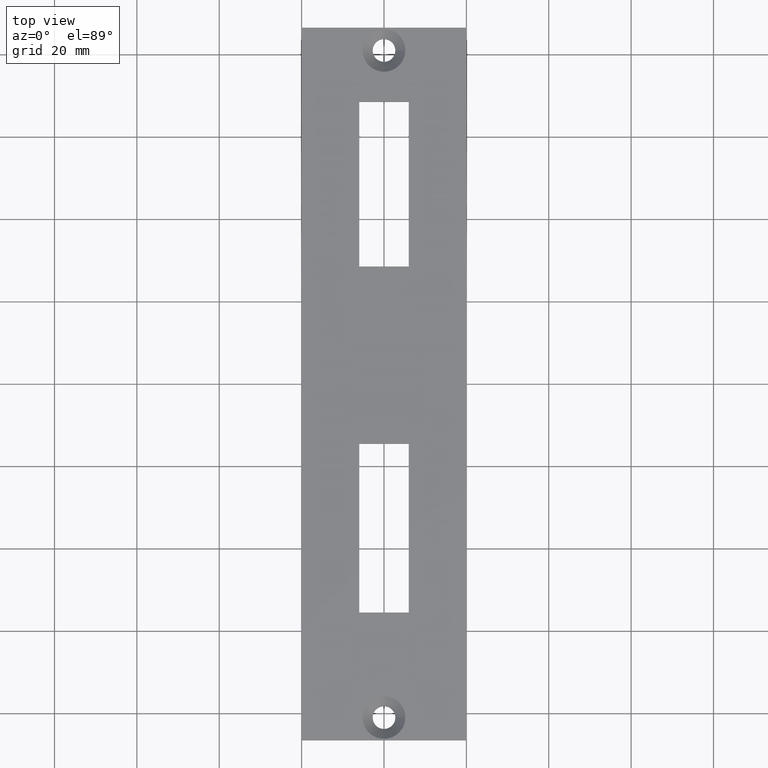
[diagram: clean part render]
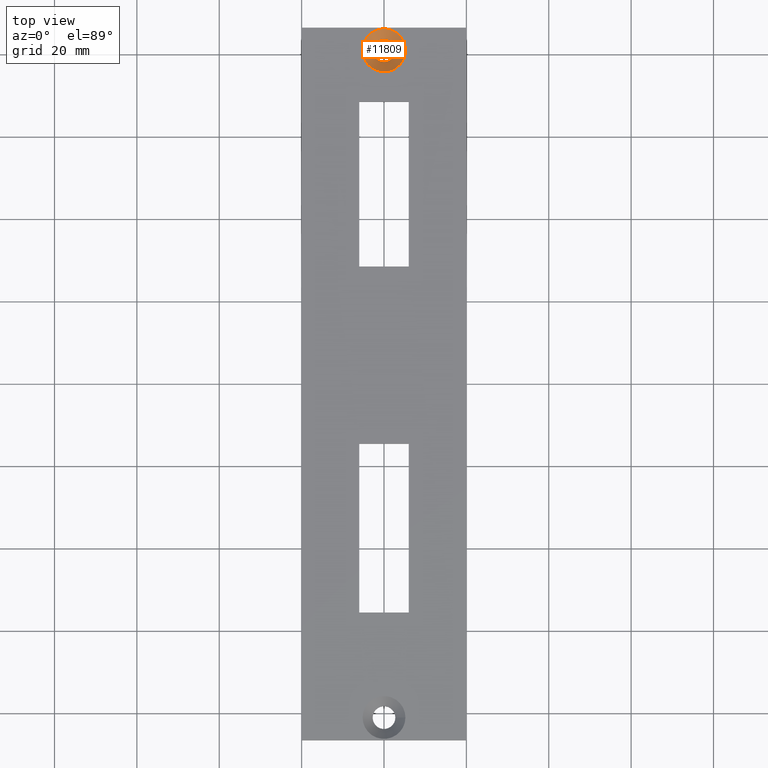
[diagram: same view with one face highlighted and labeled with its STEP entity id]
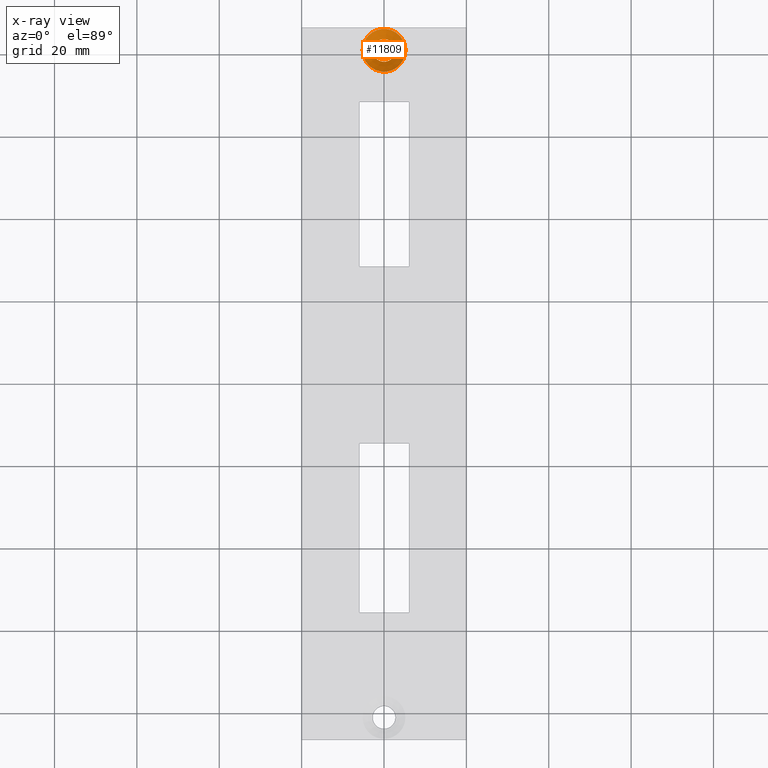
[diagram: x-ray of the same camera — body ghosted, the highlighted face saturated]
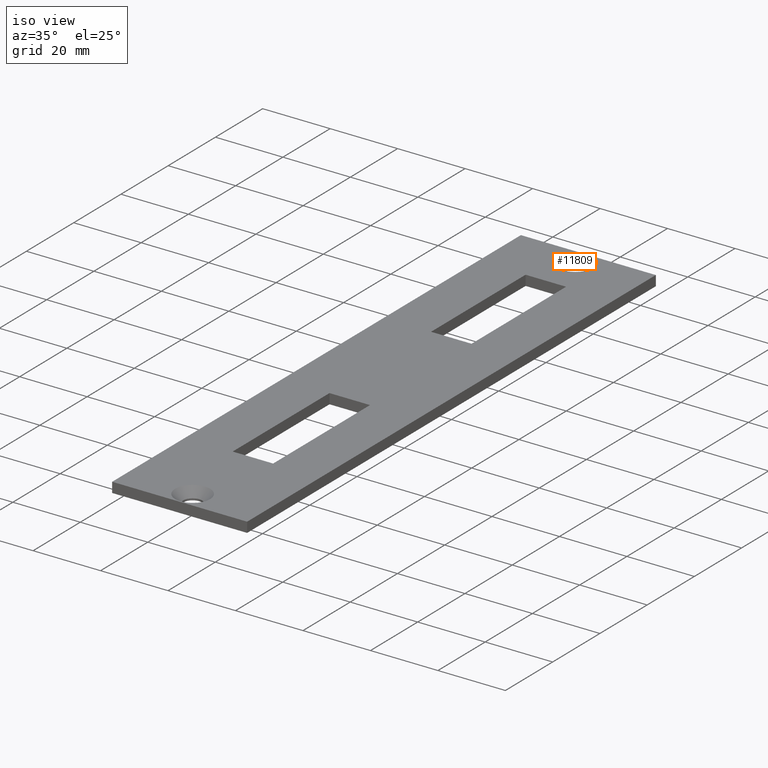
[diagram: same view with one face highlighted and labeled with its STEP entity id]
A machine part, top view. The second image highlights one B-rep face of the part: STEP entity #11809.
The next image is the same camera in x-ray: the body ghosted, the highlighted face saturated — about 0% of this face is hidden behind the body in this view.
A second angle (iso view) of the same face is appended — the face is thin or edge-on in the first view.
In plain terms, the highlighted conical surface has half-angle 45 deg.
Its self-contained STEP definition (entity closure, byte-faithful):
#966 = CARTESIAN_POINT ( 'NONE',  ( 0.000000000000000000, 80.99999999999998579, 0.5499999999999958256 ) ) ;
#1345 = EDGE_CURVE ( 'NONE', #6726, #6726, #6001, .T. ) ;
#2288 = VERTEX_POINT ( 'NONE', #13370 ) ;
#2542 = FACE_BOUND ( 'NONE', #8314, .T. ) ;
#3074 = CONICAL_SURFACE ( 'NONE', #10562, 5.200000000000001066, 0.7853981633974481680 ) ;
#3157 = DIRECTION ( 'NONE',  ( 1.000000000000000000, 0.000000000000000000, 0.000000000000000000 ) ) ;
#3699 = DIRECTION ( 'NONE',  ( -0.000000000000000000, -0.000000000000000000, 1.000000000000000000 ) ) ;
#4538 = EDGE_LOOP ( 'NONE', ( #7868 ) ) ;
#4587 = FACE_OUTER_BOUND ( 'NONE', #4538, .T. ) ;
#6001 = CIRCLE ( 'NONE', #14692, 2.749999999999997335 ) ;
#6008 = CARTESIAN_POINT ( 'NONE',  ( 0.000000000000000000, 80.99999999999998579, 3.000000000000000000 ) ) ;
#6726 = VERTEX_POINT ( 'NONE', #10730 ) ;
#6887 = DIRECTION ( 'NONE',  ( -0.000000000000000000, -0.000000000000000000, 1.000000000000000000 ) ) ;
#7574 = DIRECTION ( 'NONE',  ( 1.000000000000000000, 0.000000000000000000, 0.000000000000000000 ) ) ;
#7868 = ORIENTED_EDGE ( 'NONE', *, *, #10887, .T. ) ;
#8314 = EDGE_LOOP ( 'NONE', ( #13263 ) ) ;
#8349 = CIRCLE ( 'NONE', #9668, 5.200000000000001066 ) ;
#9668 = AXIS2_PLACEMENT_3D ( 'NONE', #6008, #3699, #11935 ) ;
#10562 = AXIS2_PLACEMENT_3D ( 'NONE', #11260, #12440, #7574 ) ;
#10730 = CARTESIAN_POINT ( 'NONE',  ( 2.749999999999997335, 80.99999999999998579, 0.5499999999999958256 ) ) ;
#10887 = EDGE_CURVE ( 'NONE', #2288, #2288, #8349, .T. ) ;
#11260 = CARTESIAN_POINT ( 'NONE',  ( 0.000000000000000000, 80.99999999999998579, 3.000000000000000000 ) ) ;
#11809 = ADVANCED_FACE ( 'NONE', ( #2542, #4587 ), #3074, .F. ) ;
#11935 = DIRECTION ( 'NONE',  ( 1.000000000000000000, 0.000000000000000000, 0.000000000000000000 ) ) ;
#12440 = DIRECTION ( 'NONE',  ( -0.000000000000000000, -0.000000000000000000, 1.000000000000000000 ) ) ;
#13263 = ORIENTED_EDGE ( 'NONE', *, *, #1345, .F. ) ;
#13370 = CARTESIAN_POINT ( 'NONE',  ( 5.200000000000001066, 80.99999999999998579, 3.000000000000000000 ) ) ;
#14692 = AXIS2_PLACEMENT_3D ( 'NONE', #966, #6887, #3157 ) ;